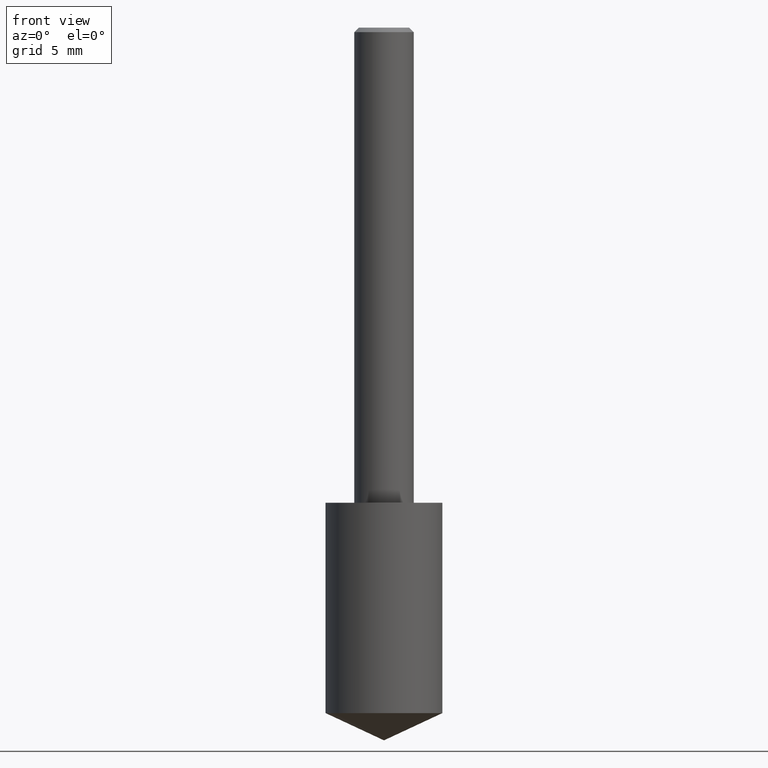
[diagram: clean part render]
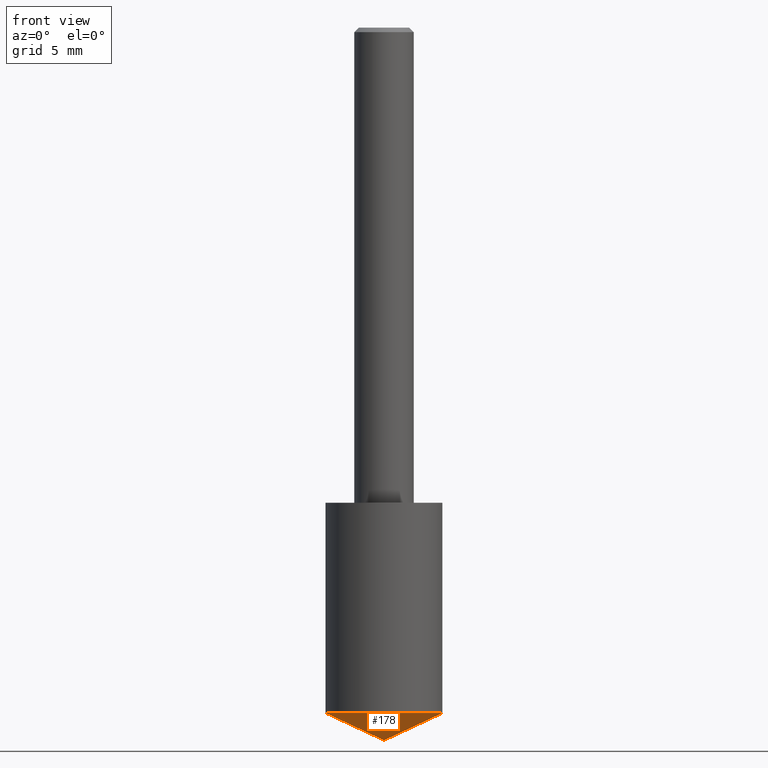
[diagram: same view with one face highlighted and labeled with its STEP entity id]
A machine part, front view. The second image highlights one B-rep face of the part: STEP entity #178.
In plain terms, the highlighted conical surface has half-angle 65 deg.
Its self-contained STEP definition (entity closure, byte-faithful):
#28 = VECTOR ( 'NONE', #51, 39.37007874015748143 ) ;
#33 = LINE ( 'NONE', #322, #89 ) ;
#35 = CARTESIAN_POINT ( 'NONE',  ( -0.1229999999999999566, -4.162997591427033247E-15, -1.442644158046935354 ) ) ;
#51 = DIRECTION ( 'NONE',  ( -0.9063077870366499367, 7.915267918739014631E-15, 0.4226182617406994413 ) ) ;
#52 = VERTEX_POINT ( 'NONE', #172 ) ;
#56 = DIRECTION ( 'NONE',  ( -2.445468806185136597E-29, 3.491481338843145583E-15, 1.000000000000000000 ) ) ;
#60 = FACE_OUTER_BOUND ( 'NONE', #316, .T. ) ;
#79 = LINE ( 'NONE', #285, #28 ) ;
#89 = VECTOR ( 'NONE', #319, 39.37007874015748143 ) ;
#93 = EDGE_CURVE ( 'NONE', #52, #107, #33, .T. ) ;
#100 = DIRECTION ( 'NONE',  ( -2.445468806185136597E-29, 3.491481338843145583E-15, 1.000000000000000000 ) ) ;
#107 = VERTEX_POINT ( 'NONE', #314 ) ;
#140 = EDGE_CURVE ( 'NONE', #52, #198, #79, .T. ) ;
#149 = CONICAL_SURFACE ( 'NONE', #270, 84.42940631927396566, 1.134464013796314230 ) ;
#172 = CARTESIAN_POINT ( 'NONE',  ( 3.668203209277704895E-29, -5.237222008264718177E-15, -1.500000000000000222 ) ) ;
#178 = ADVANCED_FACE ( 'NONE', ( #60 ), #149, .T. ) ;
#184 = DIRECTION ( 'NONE',  ( 1.000000000000000000, -6.982962677686269866E-15, 0.000000000000000000 ) ) ;
#188 = AXIS2_PLACEMENT_3D ( 'NONE', #213, #100, #184 ) ;
#198 = VERTEX_POINT ( 'NONE', #35 ) ;
#213 = CARTESIAN_POINT ( 'NONE',  ( 3.527941286929000820E-29, -5.036965156411956463E-15, -1.442644158046935354 ) ) ;
#219 = DIRECTION ( 'NONE',  ( 1.000000000000000000, -6.982962677686265922E-15, 0.000000000000000000 ) ) ;
#220 = CARTESIAN_POINT ( 'NONE',  ( -9.261009624683002666E-28, 1.322226732217803884E-13, 37.87007874015748143 ) ) ;
#270 = AXIS2_PLACEMENT_3D ( 'NONE', #220, #56, #219 ) ;
#275 = ORIENTED_EDGE ( 'NONE', *, *, #93, .T. ) ;
#285 = CARTESIAN_POINT ( 'NONE',  ( 3.668203209277704895E-29, -5.237222008264718177E-15, -1.500000000000000222 ) ) ;
#294 = ORIENTED_EDGE ( 'NONE', *, *, #140, .F. ) ;
#297 = EDGE_CURVE ( 'NONE', #198, #107, #326, .T. ) ;
#307 = ORIENTED_EDGE ( 'NONE', *, *, #297, .F. ) ;
#314 = CARTESIAN_POINT ( 'NONE',  ( 0.1229999999999999566, -5.895869565767366984E-15, -1.442644158046935354 ) ) ;
#316 = EDGE_LOOP ( 'NONE', ( #294, #275, #307 ) ) ;
#319 = DIRECTION ( 'NONE',  ( 0.9063077870366499367, -4.853149677051379579E-15, 0.4226182617406994413 ) ) ;
#322 = CARTESIAN_POINT ( 'NONE',  ( 3.668203209277704895E-29, -5.237222008264718177E-15, -1.500000000000000222 ) ) ;
#326 = CIRCLE ( 'NONE', #188, 0.1229999999999999982 ) ;